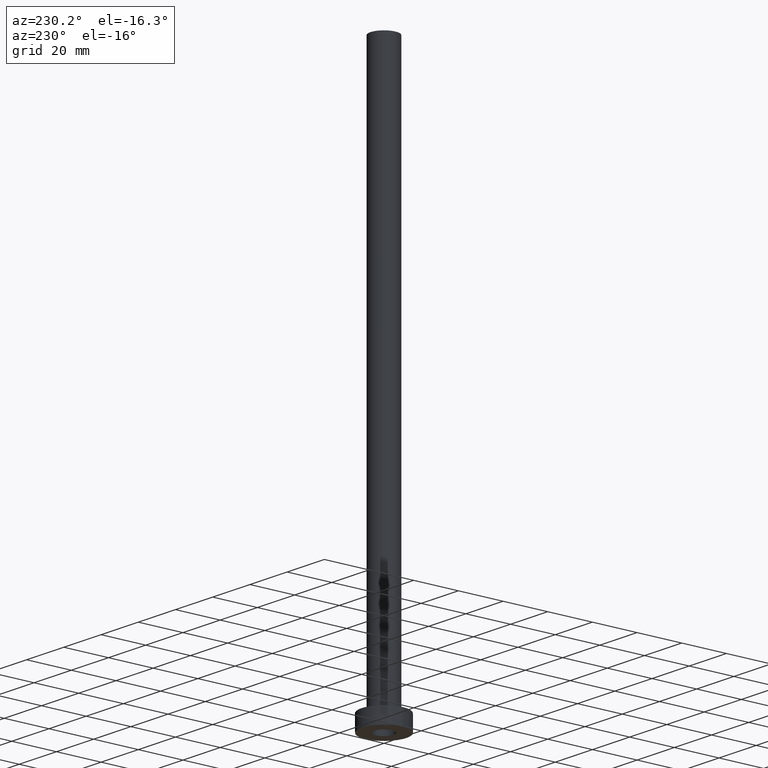
[diagram: clean part render]
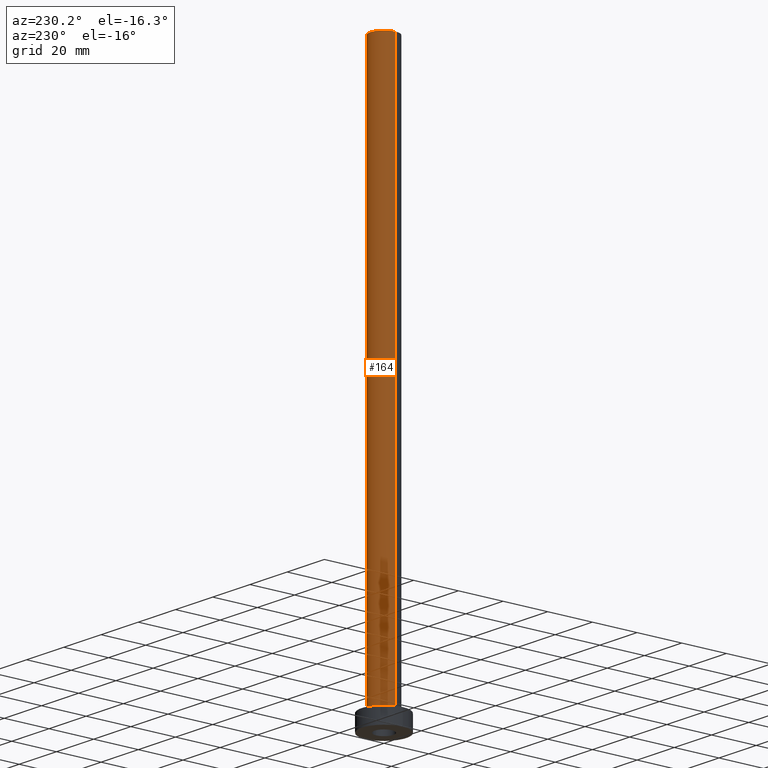
[diagram: same view with one face highlighted and labeled with its STEP entity id]
A machine part, auxiliary view. The second image highlights one B-rep face of the part: STEP entity #164.
In plain terms, the highlighted cylindrical surface (edge-blend (fillet) strip) has radius 6 mm, axis along (-0, -0, -1).
Its self-contained STEP definition (entity closure, byte-faithful):
#23 = ORIENTED_EDGE ( 'NONE', *, *, #124, .F. ) ;
#24 = CARTESIAN_POINT ( 'NONE',  ( -6.000000000000000888, 0.000000000000000000, 250.0000000000000000 ) ) ;
#27 = LINE ( 'NONE', #64, #408 ) ;
#39 = ORIENTED_EDGE ( 'NONE', *, *, #133, .F. ) ;
#64 = CARTESIAN_POINT ( 'NONE',  ( -6.000000000000000888, 0.000000000000000000, 250.0000000000000000 ) ) ;
#83 = VERTEX_POINT ( 'NONE', #267 ) ;
#96 = EDGE_LOOP ( 'NONE', ( #39, #375, #429, #23 ) ) ;
#124 = EDGE_CURVE ( 'NONE', #203, #212, #27, .T. ) ;
#133 = EDGE_CURVE ( 'NONE', #254, #203, #219, .T. ) ;
#157 = EDGE_CURVE ( 'NONE', #254, #83, #351, .T. ) ;
#161 = CIRCLE ( 'NONE', #322, 6.000000000000000888 ) ;
#164 = ADVANCED_FACE ( 'NONE', ( #452 ), #172, .T. ) ;
#170 = CARTESIAN_POINT ( 'NONE',  ( 6.000000000000000888, 7.347880794884120722E-16, 250.0000000000000000 ) ) ;
#172 = CYLINDRICAL_SURFACE ( 'NONE', #240, 6.000000000000000888 ) ;
#200 = EDGE_CURVE ( 'NONE', #83, #212, #161, .T. ) ;
#203 = VERTEX_POINT ( 'NONE', #24 ) ;
#212 = VERTEX_POINT ( 'NONE', #458 ) ;
#213 = DIRECTION ( 'NONE',  ( 1.000000000000000000, 0.000000000000000000, 0.000000000000000000 ) ) ;
#215 = DIRECTION ( 'NONE',  ( -1.000000000000000000, 0.000000000000000000, 0.000000000000000000 ) ) ;
#219 = CIRCLE ( 'NONE', #378, 6.000000000000000888 ) ;
#240 = AXIS2_PLACEMENT_3D ( 'NONE', #384, #414, #215 ) ;
#254 = VERTEX_POINT ( 'NONE', #364 ) ;
#267 = CARTESIAN_POINT ( 'NONE',  ( 6.000000000000000888, 7.347880794884120722E-16, 7.700000000000012612 ) ) ;
#268 = VECTOR ( 'NONE', #454, 1000.000000000000000 ) ;
#276 = DIRECTION ( 'NONE',  ( -0.000000000000000000, -0.000000000000000000, -1.000000000000000000 ) ) ;
#280 = CARTESIAN_POINT ( 'NONE',  ( 0.000000000000000000, 0.000000000000000000, 250.0000000000000000 ) ) ;
#282 = DIRECTION ( 'NONE',  ( 0.000000000000000000, 0.000000000000000000, 1.000000000000000000 ) ) ;
#322 = AXIS2_PLACEMENT_3D ( 'NONE', #423, #282, #355 ) ;
#351 = LINE ( 'NONE', #170, #268 ) ;
#355 = DIRECTION ( 'NONE',  ( 1.000000000000000000, 0.000000000000000000, 0.000000000000000000 ) ) ;
#364 = CARTESIAN_POINT ( 'NONE',  ( 6.000000000000000888, 7.347880794884120722E-16, 250.0000000000000000 ) ) ;
#375 = ORIENTED_EDGE ( 'NONE', *, *, #157, .T. ) ;
#378 = AXIS2_PLACEMENT_3D ( 'NONE', #280, #420, #213 ) ;
#384 = CARTESIAN_POINT ( 'NONE',  ( 0.000000000000000000, 0.000000000000000000, 250.0000000000000000 ) ) ;
#408 = VECTOR ( 'NONE', #276, 1000.000000000000000 ) ;
#414 = DIRECTION ( 'NONE',  ( -0.000000000000000000, -0.000000000000000000, -1.000000000000000000 ) ) ;
#420 = DIRECTION ( 'NONE',  ( 0.000000000000000000, 0.000000000000000000, 1.000000000000000000 ) ) ;
#423 = CARTESIAN_POINT ( 'NONE',  ( 0.000000000000000000, 0.000000000000000000, 7.700000000000012612 ) ) ;
#429 = ORIENTED_EDGE ( 'NONE', *, *, #200, .T. ) ;
#452 = FACE_OUTER_BOUND ( 'NONE', #96, .T. ) ;
#454 = DIRECTION ( 'NONE',  ( -0.000000000000000000, -0.000000000000000000, -1.000000000000000000 ) ) ;
#458 = CARTESIAN_POINT ( 'NONE',  ( -6.000000000000000888, 0.000000000000000000, 7.700000000000012612 ) ) ;